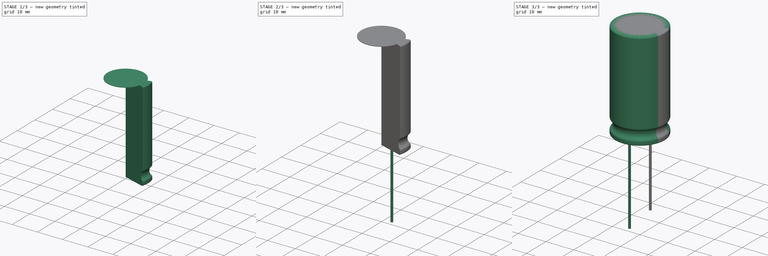
[diagram: build sequence overview — one tinted view per stage of 3, left to right]
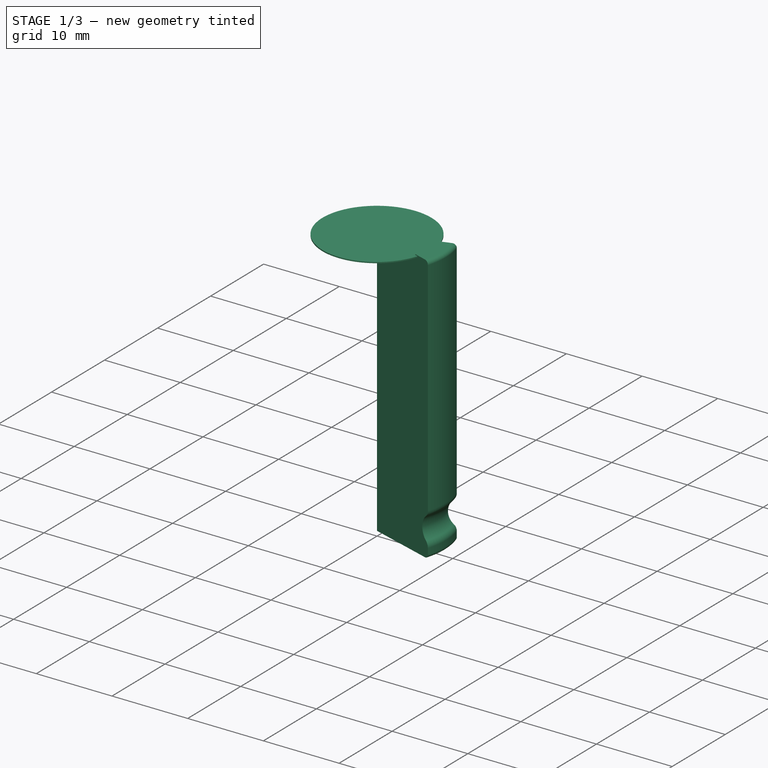
[diagram: stage 1 of 3 — iso view after this stage's code; geometry added in this stage tinted green]
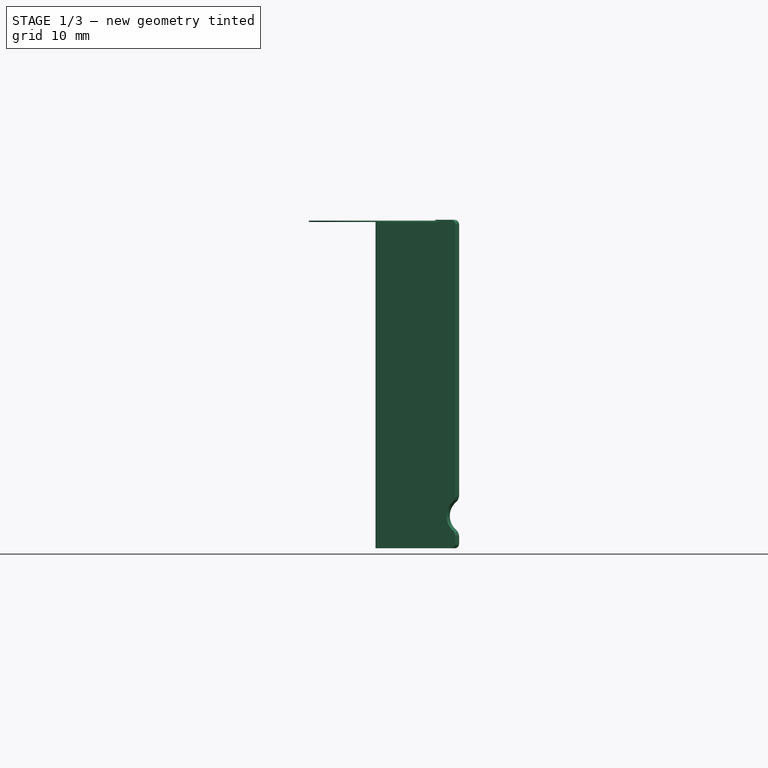
[diagram: stage 1 of 3 — front view after this stage's code; geometry added in this stage tinted green]
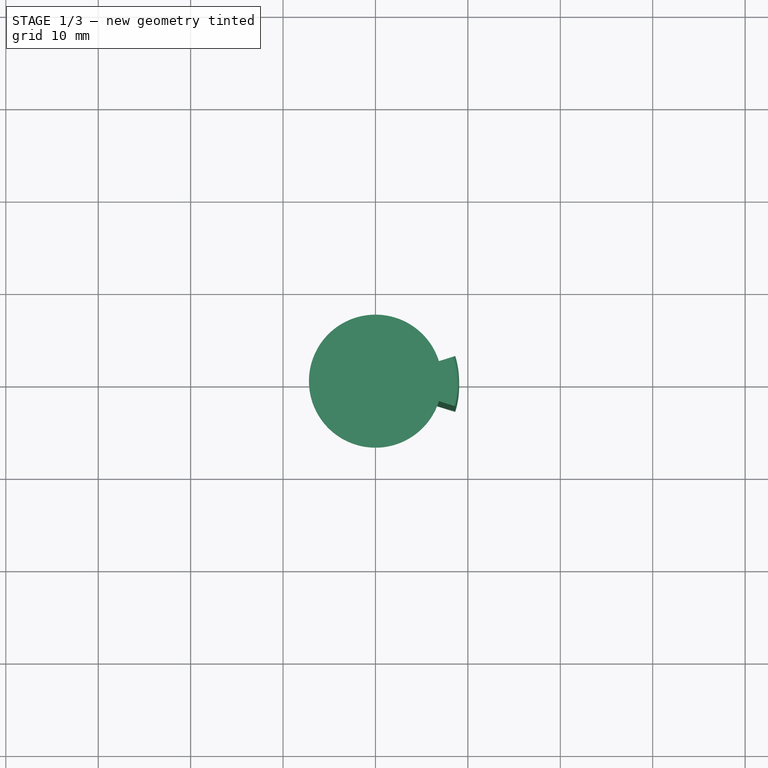
[diagram: stage 1 of 3 — top view after this stage's code; geometry added in this stage tinted green]
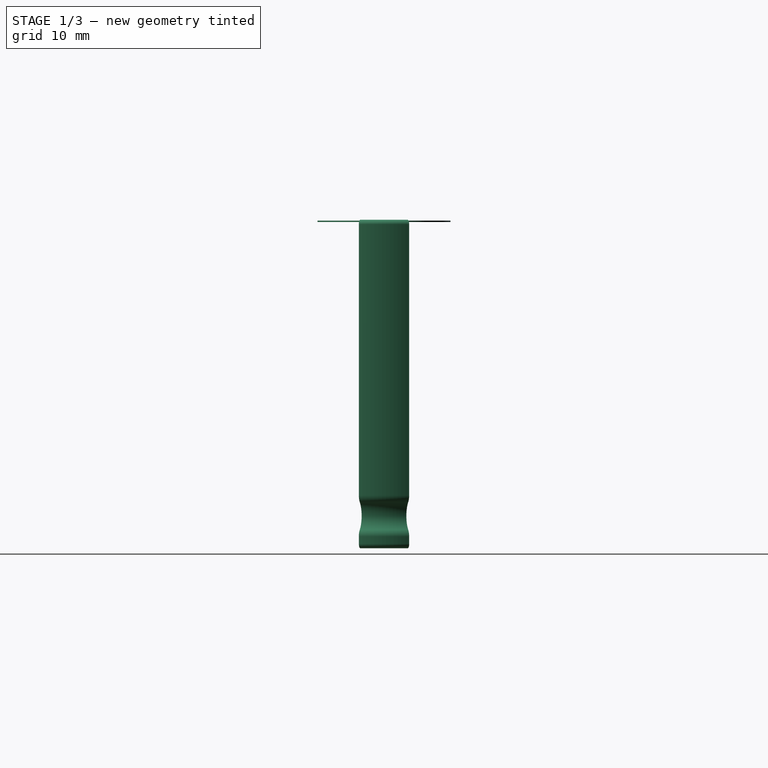
[diagram: stage 1 of 3 — right view after this stage's code; geometry added in this stage tinted green]
FCSTD DOCUMENT  (FreeCAD 0.19R22522 (Git))
Label: ELKO_CONFIGURABLE
License: All rights reserved
LicenseURL: http://en.wikipedia.org/wiki/All_rights_reserved
objects: Sketcher::SketchObject×6, PartDesign::Body×5, PartDesign::Pad×3, PartDesign::Revolution×2, Spreadsheet::Sheet×1, PartDesign::Plane×1
note: 22 computed .brp shape members not serialized (recipe doc carries the construction recipe); baked Part::Feature solids carry a one-line shape summary decoded from their .brp

FEATURE [PartDesign::Body] Body002  label="Pin_Kathode"
  Group = -> [Sketch003,Pad001]
  Origin = -> Origin002
  Tip = -> Pad001
FEATURE [Sketcher::SketchObject] Sketch004
  AttachmentOffset = pos=(0,0,0) rot=(0,1,0;4.71239rad)
  MapMode = 5
  Placement = pos=(0,0,0) rot=(-1,0,0;4.71239rad)
  Support = -> [YZ_Plane003]
  expr: Constraints[26] = <<Config>>.H + 0.05
  expr: Constraints[20] = 1mm
  expr: Constraints[30] = <<Config>>.D / 2 * 0.25
  expr: Constraints[25] = <<Config>>.D / 2 + 0.05
  expr: Constraints[12] = 3.5mm
  expr: Constraints[6] = <<Config>>.R_oben
  expr: Constraints[10] = <<Config>>.R_unten
  sketch-geometry (12):
    g0: LineSegment StartX=0 StartY=0 StartZ=0 EndX=8.55 EndY=0 EndZ=0
    g1: LineSegment StartX=9.05 StartY=0.5 StartZ=0 EndX=9.05 EndY=1.26393 EndZ=0
    g2: LineSegment StartX=8.55 StartY=35.55 StartZ=0 EndX=6.8 EndY=35.55 EndZ=0
    g3: LineSegment StartX=0 StartY=35.35 StartZ=0 EndX=0 EndY=0 EndZ=0
    g4: ArcOfCircle CenterX=8.55 CenterY=35.05 CenterZ=0 NormalX=0 NormalY=0 NormalZ=1 AngleXU=0 Radius=0.5 StartAngle=1.5e-15 EndAngle=1.5708
    g5: ArcOfCircle CenterX=8.55 CenterY=0.5 CenterZ=0 NormalX=0 NormalY=0 NormalZ=1 AngleXU=0 Radius=0.5 StartAngle=4.71239 EndAngle=6.28319
    g6: ArcOfCircle CenterX=10.05 CenterY=3.5 CenterZ=0 NormalX=0 NormalY=0 NormalZ=1 AngleXU=0 Radius=2 StartAngle=2.30052 EndAngle=3.98266
    g7: LineSegment StartX=9.05 StartY=5.73607 StartZ=0 EndX=9.05 EndY=35.05 EndZ=0
    g8: ArcOfCircle CenterX=8.05 CenterY=5.73607 CenterZ=0 NormalX=0 NormalY=0 NormalZ=1 AngleXU=0 Radius=1 StartAngle=5.44212 EndAngle=6.28319
    g9: ArcOfCircle CenterX=8.05 CenterY=1.26393 CenterZ=0 NormalX=0 NormalY=0 NormalZ=1 AngleXU=0 Radius=1 StartAngle=0 EndAngle=0.841069
    g10: LineSegment StartX=6.8 StartY=35.55 StartZ=0 EndX=6.8 EndY=35.35 EndZ=0
    g11: LineSegment StartX=6.8 StartY=35.35 StartZ=0 EndX=0 EndY=35.35 EndZ=0
  constraints (31):
    c: Coincident(g0,g-1)
    c: Vertical(g1)
    c: Horizontal(g2)
    c: Coincident(g3,g0)
    c: Coincident(g7,g4) = -1.5708
    c: Tangent(g2,g4) = -1.5708
    c: Radius(g4) = 0.5
    c: Tangent(g0,g5) = -1.5708
    c: Tangent(g1,g5) = -1.5708
    c: Horizontal(g0)
    c: Radius(g5) = 0.5
    c: Tangent(g1,g7)
    c: DistanceY(g0,g6) = 3.5
    c: Radius(g6) = 2
    c: Tangent(g4,g7,g4) = -1.5708
    c: Tangent(g6,g8) = 1.5708
    c: Tangent(g7,g8) = -1.5708
    c: Tangent(g6,g9) = 1.5708
    c: Tangent(g1,g9) = -1.5708
    c: Radius(g8) = 1
    c: Radius(g9) = 1
    c: DistanceX(g1,g6) = 1
    c: Vertical(g10)
    c: Coincident(g11,g10)
    c: Horizontal(g11)
    c: DistanceX(g0,g4) = 9.05
    c: DistanceY(g0,g2) = 35.55
    c: Coincident(g2,g10)
    c: Coincident(g3,g11)
    c: DistanceY(g10,g2) = 0.2
    c: DistanceX(g2,g4) = 2.25
FEATURE [PartDesign::Revolution] Revolution001
  Angle = 35
  Axis = (-2e-16,0,1)
  Base = (0,0,0)
  Midplane = true
  Placement = pos=(0,0,0) rot=(0.57735,0.57735,0.57735;2.0944rad)
  Profile = -> Sketch004
  ReferenceAxis = -> Sketch004 [V_Axis]
  Reversed = true
FEATURE [PartDesign::Body] Body003
  Group = -> [Sketch004,Revolution001]
  Origin = -> Origin003
  Tip = -> Revolution001
FEATURE [PartDesign::Plane] DatumPlane
  AttachmentOffset = pos=(0,0,35.3) rot=(0,0,1;0rad)
  Length = 60
  MapMode = 5
  Placement = pos=(0,0,35.3) rot=(0,0,1;0rad)
  ResizeMode = 0
  Support = -> [XY_Plane004]
  Width = 60
  expr: .AttachmentOffset.Base.z = <<Config>>.H - 0.2
FEATURE [Sketcher::SketchObject] Sketch005
  MapMode = 5
  Placement = pos=(0,0,35.3) rot=(0,0,1;0rad)
  Support = -> [DatumPlane]
  expr: Constraints[1] = <<Config>>.D / 2 * 0.8
  sketch-geometry (1):
    g0: Circle CenterX=0 CenterY=0 CenterZ=0 NormalX=0 NormalY=0 NormalZ=1 AngleXU=0 Radius=7.2
  constraints (2):
    c: Coincident(g0,g-1)
    c: Radius(g0) = 7.2
FEATURE [PartDesign::Pad] Pad002
  Direction = (1,1,1)
  Length = 0.15
  Length2 = 100
  Placement = pos=(0,0,35.3) rot=(0,0,1;0rad)
  Profile = -> Sketch005
  Type = 0
FEATURE [PartDesign::Body] Body004
  Group = -> [DatumPlane,Sketch005,Pad002]
  Origin = -> Origin004
  Tip = -> Pad002
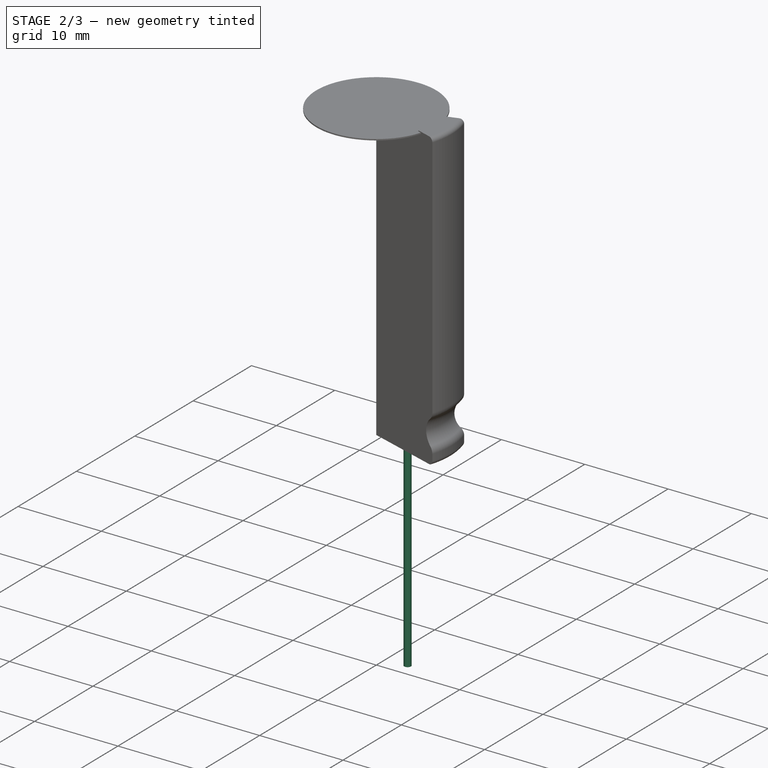
[diagram: stage 2 of 3 — iso view after this stage's code; geometry added in this stage tinted green]
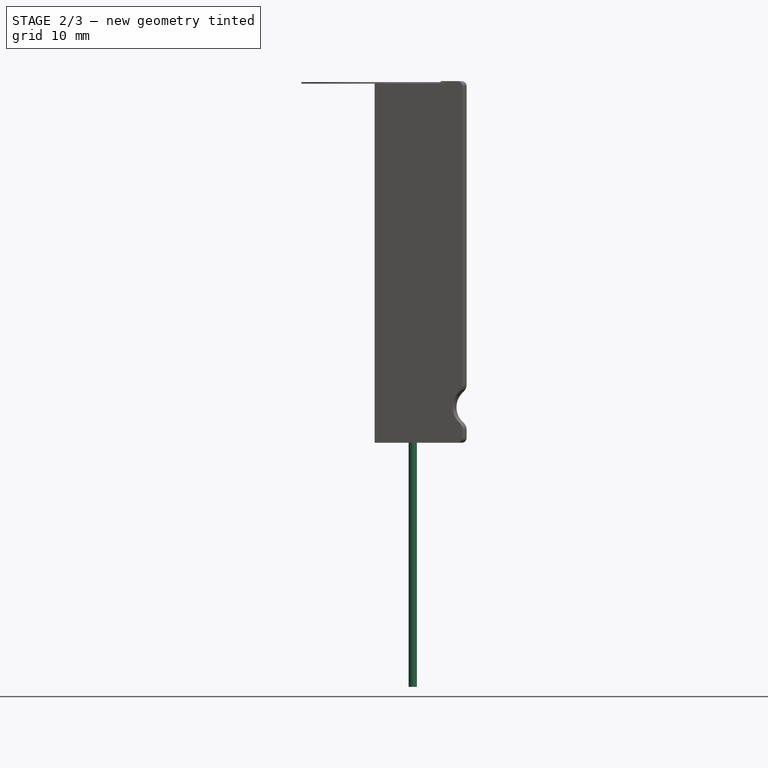
[diagram: stage 2 of 3 — front view after this stage's code; geometry added in this stage tinted green]
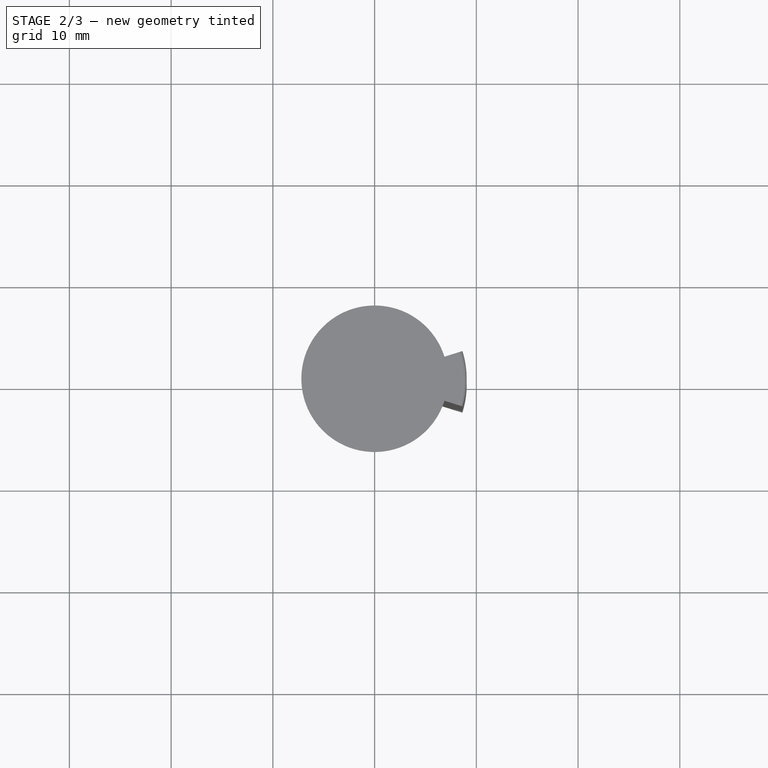
[diagram: stage 2 of 3 — top view after this stage's code; geometry added in this stage tinted green]
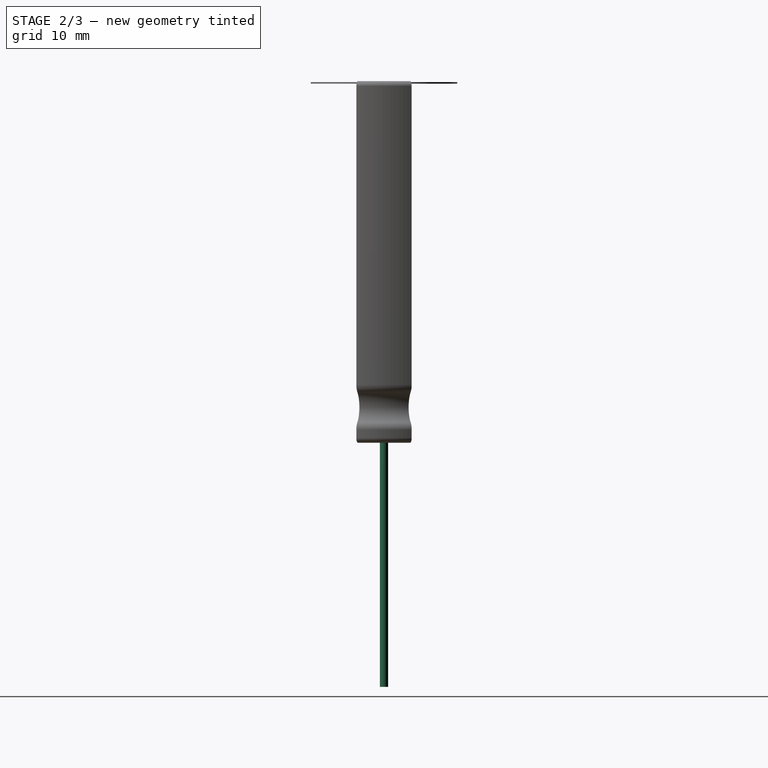
[diagram: stage 2 of 3 — right view after this stage's code; geometry added in this stage tinted green]
FEATURE [PartDesign::Body] Body001  label="Pin_Anode"
  Group = -> [Sketch002,Pad]
  Origin = -> Origin001
  Tip = -> Pad
FEATURE [Sketcher::SketchObject] Sketch003
  MapMode = 5
  Support = -> [XY_Plane002]
  expr: Constraints[2] = <<Config>>.Pin_abstand / 2
  expr: Constraints[1] = <<Config>>.Pin_d
  sketch-geometry (1):
    g0: Circle CenterX=3.75 CenterY=0 CenterZ=0 NormalX=0 NormalY=0 NormalZ=1 AngleXU=0 Radius=0.4
  constraints (3):
    c: PointOnObject(g0,g-1)
    c: Diameter(g0) = 0.8
    c: DistanceX(g-1,g0) = 3.75
FEATURE [PartDesign::Pad] Pad001
  Direction = (1,1,1)
  Length = 24
  Length2 = 100
  Profile = -> Sketch003
  Reversed = true
  Type = 0
  expr: Length = <<Config>>.Kathode_laenge
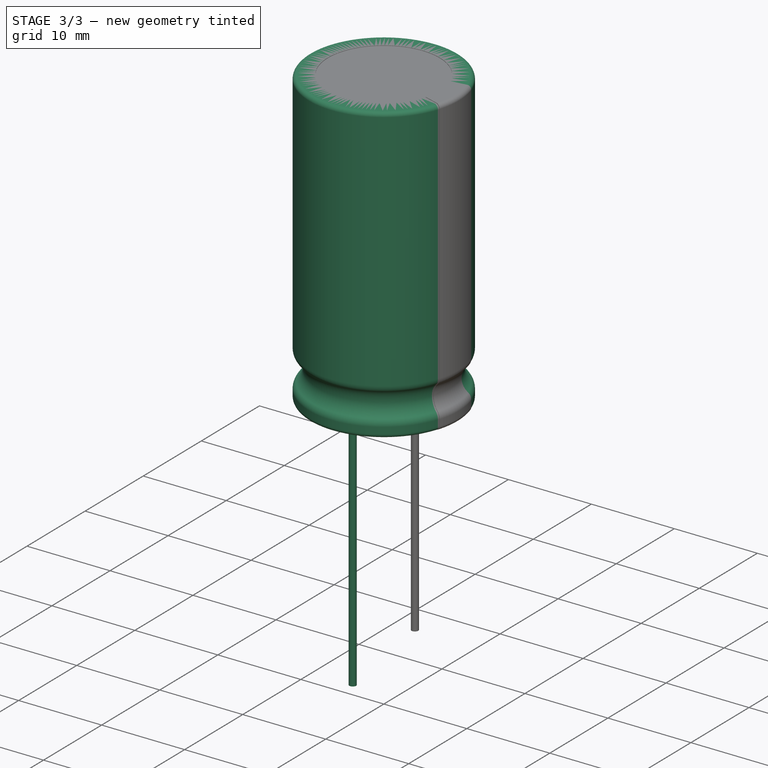
[diagram: stage 3 of 3 — iso view after this stage's code; geometry added in this stage tinted green]
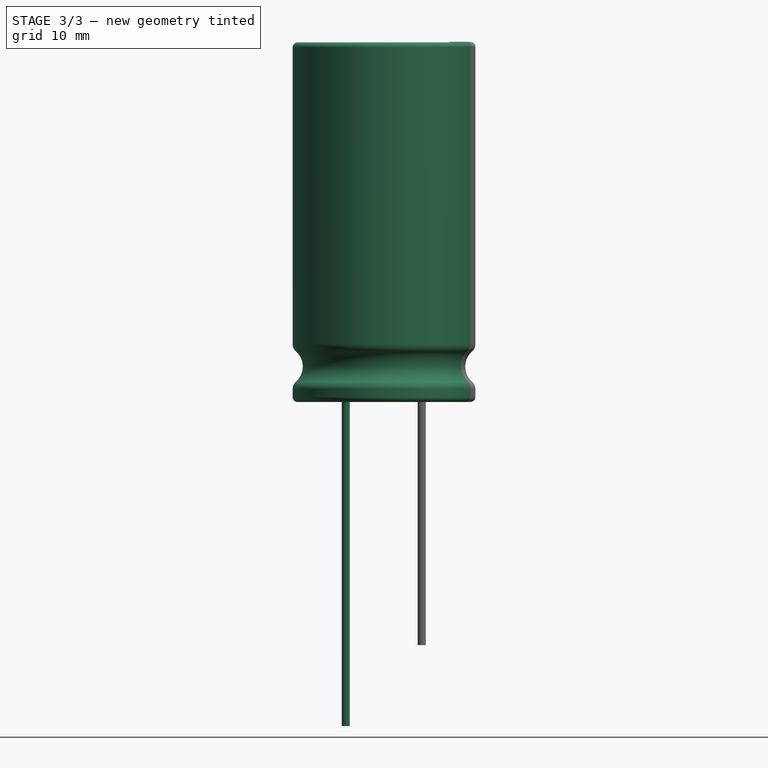
[diagram: stage 3 of 3 — front view after this stage's code; geometry added in this stage tinted green]
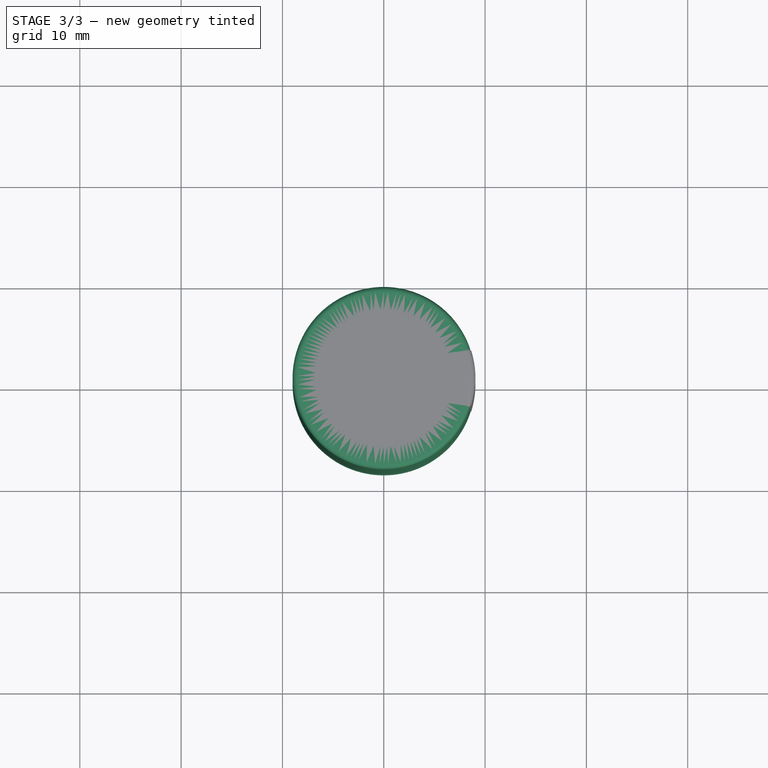
[diagram: stage 3 of 3 — top view after this stage's code; geometry added in this stage tinted green]
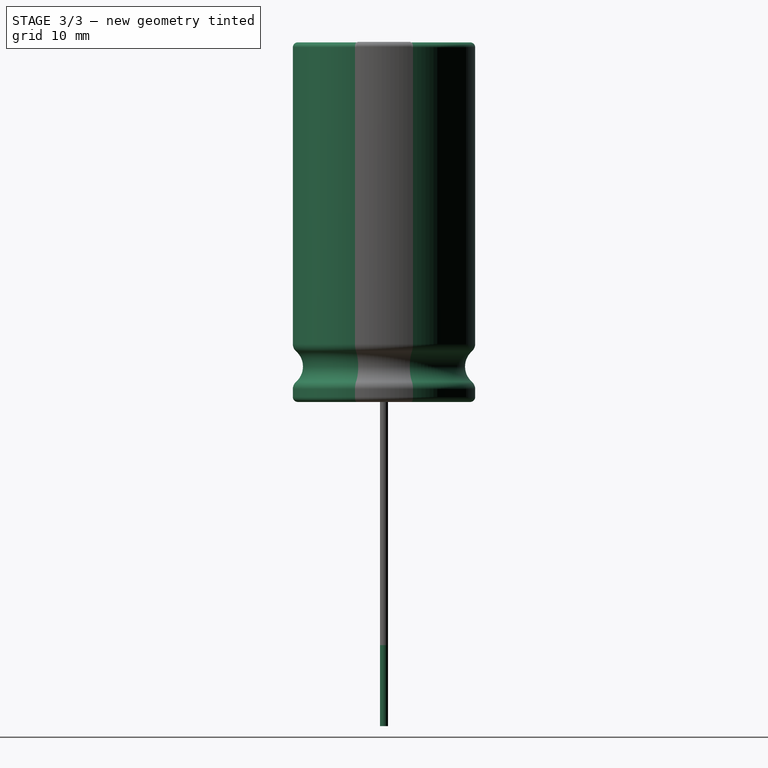
[diagram: stage 3 of 3 — right view after this stage's code; geometry added in this stage tinted green]
FEATURE [Spreadsheet::Sheet] Spreadsheet  label="Config"
  cells = A1=D (mm); B1=H (mm); C1=R_oben; D1=R_unten; A2(D)=18; B2(H)=35.5; C2(R_oben)=0.5; D2(R_unten)=0.5; A4=Sollbruch_breite; B4=Sollbruch_tiefe; A5(Sollbruch_breite)=0.2; B5(Sollbruch_tiefe)=0.2; A7=Pin_abstand; B7=Pin_d; C7=Anode_laenge; D7=Kathode_laenge; A8(Pin_abstand)=7.5; B8(Pin_d)=0.8; C8(Anode_laenge)=32; D8(Kathode_laenge)=24
FEATURE [Sketcher::SketchObject] Sketch
  MapMode = 5
  Placement = pos=(0,0,0) rot=(0.57735,0.57735,0.57735;2.0944rad)
  Support = -> [YZ_Plane]
  expr: Constraints[30] = <<Config>>.D / 2 * 0.25
  expr: Constraints[28] = <<Config>>.D / 2
  expr: Constraints[25] = <<Config>>.H
  expr: Constraints[6] = <<Config>>.R_oben
  expr: Constraints[10] = <<Config>>.R_unten
  sketch-geometry (12):
    g0: LineSegment StartX=0 StartY=0 StartZ=0 EndX=8.5 EndY=0 EndZ=0
    g1: LineSegment StartX=9 StartY=0.5 StartZ=0 EndX=9 EndY=1.26393 EndZ=0
    g2: LineSegment StartX=8.5 StartY=35.5 StartZ=0 EndX=6.75 EndY=35.5 EndZ=0
    g3: LineSegment StartX=0 StartY=35.3 StartZ=0 EndX=0 EndY=0 EndZ=0
    g4: ArcOfCircle CenterX=8.5 CenterY=35 CenterZ=0 NormalX=0 NormalY=0 NormalZ=1 AngleXU=0 Radius=0.5 StartAngle=4e-16 EndAngle=1.5708
    g5: ArcOfCircle CenterX=8.5 CenterY=0.5 CenterZ=0 NormalX=0 NormalY=0 NormalZ=1 AngleXU=0 Radius=0.5 StartAngle=4.71239 EndAngle=6.28319
    g6: ArcOfCircle CenterX=10 CenterY=3.5 CenterZ=0 NormalX=0 NormalY=0 NormalZ=1 AngleXU=0 Radius=2 StartAngle=2.30052 EndAngle=3.98266
    g7: LineSegment StartX=9 StartY=5.73607 StartZ=0 EndX=9 EndY=35 EndZ=0
    g8: ArcOfCircle CenterX=8 CenterY=5.73607 CenterZ=0 NormalX=0 NormalY=0 NormalZ=1 AngleXU=0 Radius=1 StartAngle=5.44212 EndAngle=6.28319
    g9: ArcOfCircle CenterX=8 CenterY=1.26393 CenterZ=0 NormalX=0 NormalY=0 NormalZ=1 AngleXU=0 Radius=1 StartAngle=0 EndAngle=0.841069
    g10: LineSegment StartX=6.75 StartY=35.5 StartZ=0 EndX=6.75 EndY=35.3 EndZ=0
    g11: LineSegment StartX=6.75 StartY=35.3 StartZ=0 EndX=0 EndY=35.3 EndZ=0
  constraints (32):
    c: Coincident(g0,g-1)
    c: Vertical(g1)
    c: Horizontal(g2)
    c: Coincident(g3,g0)
    c: Coincident(g7,g4) = -1.5708
    c: Tangent(g2,g4) = -1.5708
    c: Radius(g4) = 0.5
    c: Tangent(g0,g5) = -1.5708
    c: Tangent(g1,g5) = -1.5708
    c: Horizontal(g0)
    c: Radius(g5) = 0.5
    c: Tangent(g1,g7)
    c: DistanceY(g0,g6) = 3.5
    c: Radius(g6) = 2
    c: Tangent(g4,g7,g4) = -1.5708
    c: Tangent(g6,g8) = 1.5708
    c: Tangent(g7,g8) = -1.5708
    c: Tangent(g6,g9) = 1.5708
    c: Tangent(g1,g9) = -1.5708
    c: Radius(g8) = 1
    c: Radius(g9) = 1
    c: DistanceX(g1,g6) = 1
    c: Vertical(g10)
    c: Coincident(g11,g10)
    c: Horizontal(g11)
    c: DistanceY(g0,g2) = 35.5
    c: Coincident(g2,g10)
    c: Coincident(g3,g11)
    c: DistanceX(g3,g4) = 9
    c: DistanceY(g10,g10) = 0.2
    c: DistanceX(g2,g4) = 2.25
    c: Vertical(g3)
FEATURE [PartDesign::Revolution] Revolution
  Angle = 360
  Axis = (-2e-16,3e-16,1)
  Base = (0,0,0)
  Placement = pos=(0,0,0) rot=(0.57735,0.57735,0.57735;2.0944rad)
  Profile = -> Sketch
  ReferenceAxis = -> Sketch [V_Axis]
  Reversed = true
FEATURE [PartDesign::Body] Body
  Group = -> [Sketch,Revolution]
  Origin = -> Origin
  Tip = -> Revolution
FEATURE [Sketcher::SketchObject] Sketch001
  AttachmentOffset = pos=(0,0,35.5) rot=(0,0,1;0rad)
  MapMode = 5
  Placement = pos=(0,0,35.5) rot=(0,0,1;0rad)
  Support = -> [XY_Plane]
  expr: Constraints[12] = <<Config>>.Sollbruch_breite
  expr: .AttachmentOffset.Base.z = <<Config>>.H
  expr: Constraints[13] = <<Config>>.Sollbruch_breite
  expr: Constraints[24] = <<Config>>.D - 2 * <<Config>>.R_oben - 1
  expr: Constraints[27] = <<Config>>.D - 2 * <<Config>>.R_oben - 1
  sketch-geometry (12):
    g0: LineSegment StartX=-8 StartY=0.1 StartZ=0 EndX=-0.1 EndY=0.1 EndZ=0
    g1: LineSegment StartX=8 StartY=-0.1 StartZ=0 EndX=0.1 EndY=-0.1 EndZ=0
    g2: LineSegment StartX=-0.1 StartY=8 StartZ=0 EndX=-0.1 EndY=0.1 EndZ=0
    g3: LineSegment StartX=0.1 StartY=-8 StartZ=0 EndX=0.1 EndY=-0.1 EndZ=0
    g4: LineSegment StartX=-0.1 StartY=8 StartZ=0 EndX=0.1 EndY=8 EndZ=0
    g5: LineSegment StartX=8 StartY=0.1 StartZ=0 EndX=8 EndY=-0.1 EndZ=0
    g6: LineSegment StartX=-0.1 StartY=-8 StartZ=0 EndX=0.1 EndY=-8 EndZ=0
    g7: LineSegment StartX=-8 StartY=0.1 StartZ=0 EndX=-8 EndY=-0.1 EndZ=0
    g8: LineSegment StartX=0.1 StartY=0.1 StartZ=0 EndX=8 EndY=0.1 EndZ=0
    g9: LineSegment StartX=0.1 StartY=0.1 StartZ=0 EndX=0.1 EndY=8 EndZ=0
    g10: LineSegment StartX=-0.1 StartY=-0.1 StartZ=0 EndX=-8 EndY=-0.1 EndZ=0
    g11: LineSegment StartX=-0.1 StartY=-0.1 StartZ=0 EndX=-0.1 EndY=-8 EndZ=0
  constraints (28):
    c: Horizontal(g1)
    c: Vertical(g2)
    c: Coincident(g4,g2)
    c: Coincident(g4,g9)
    c: Coincident(g5,g8)
    c: Coincident(g5,g1)
    c: Coincident(g6,g11)
    c: Coincident(g6,g3)
    c: Horizontal(g6)
    c: Coincident(g7,g0)
    c: Coincident(g7,g10)
    c: Vertical(g7)
    c: DistanceX(g4,g4) = 0.2
    c: DistanceY(g5,g5) = 0.2
    c: Symmetric(g8,g1,g-1)
    c: Symmetric(g2,g9,g-2)
    c: Tangent(g0,g8)
    c: Coincident(g9,g8)
    c: Tangent(g3,g9)
    c: Coincident(g1,g3)
    c: Tangent(g1,g10)
    c: Coincident(g2,g0)
    c: Coincident(g11,g10)
    c: Tangent(g2,g11)
    c: DistanceX(g7,g1) = 16
    c: Symmetric(g0,g5,g-2)
    c: Symmetric(g4,g3,g-1)
    c: DistanceY(g3,g4) = 16
FEATURE [Sketcher::SketchObject] Sketch002
  MapMode = 5
  Support = -> [XY_Plane001]
  expr: Constraints[2] = <<Config>>.Pin_abstand / 2
  expr: Constraints[0] = <<Config>>.Pin_d
  sketch-geometry (1):
    g0: Circle CenterX=-3.75 CenterY=0 CenterZ=0 NormalX=0 NormalY=0 NormalZ=1 AngleXU=0 Radius=0.4
  constraints (3):
    c: Diameter(g0) = 0.8
    c: PointOnObject(g0,g-1)
    c: DistanceX(g0,g-1) = 3.75
FEATURE [PartDesign::Pad] Pad
  Direction = (1,1,1)
  Length = 32
  Length2 = 100
  Profile = -> Sketch002
  Reversed = true
  Type = 0
  expr: Length = <<Config>>.Anode_laenge
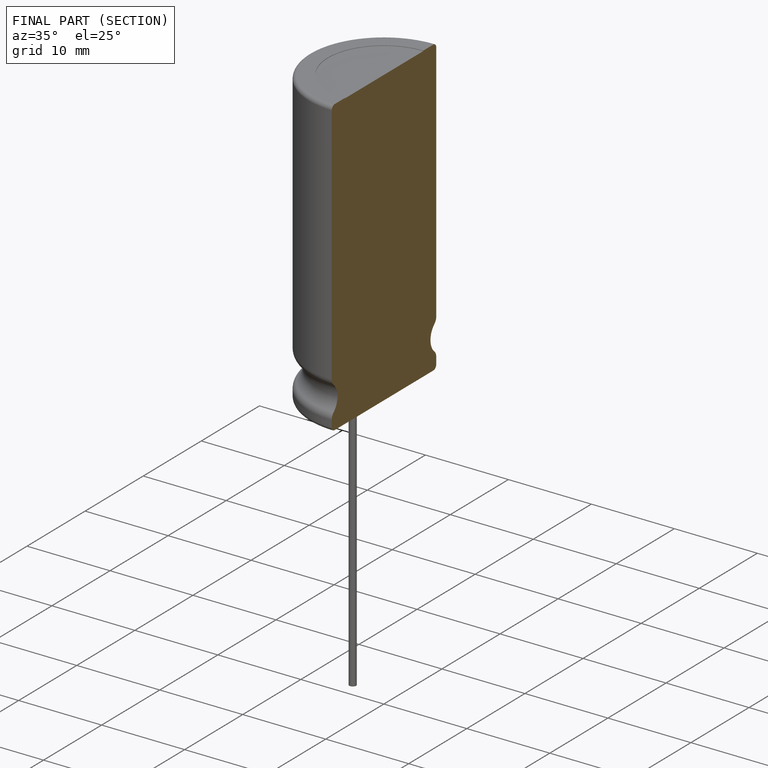
[diagram: finished part — half-section view (interior)]
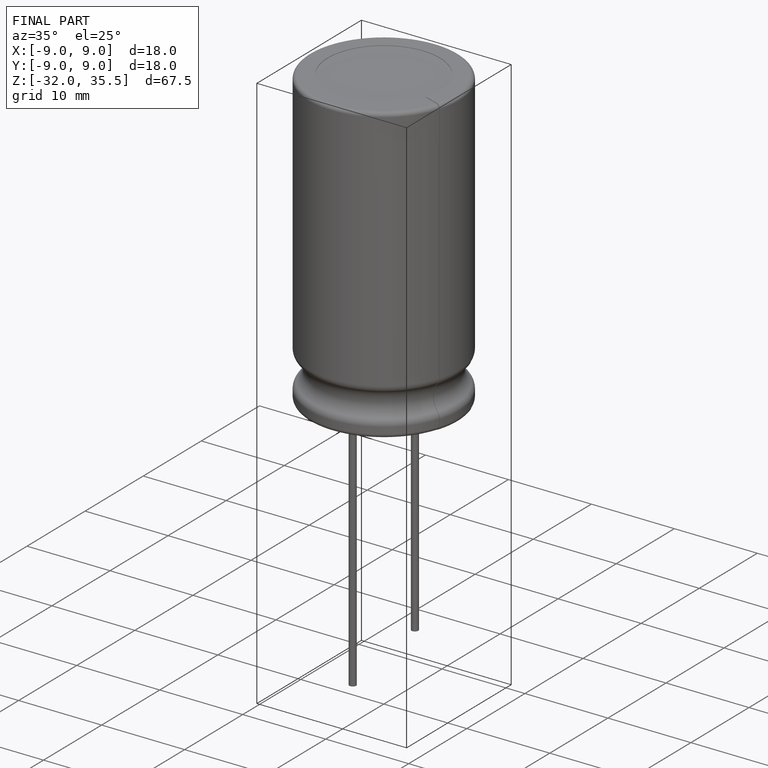
[diagram: finished part — iso view with bounding-box wireframe]
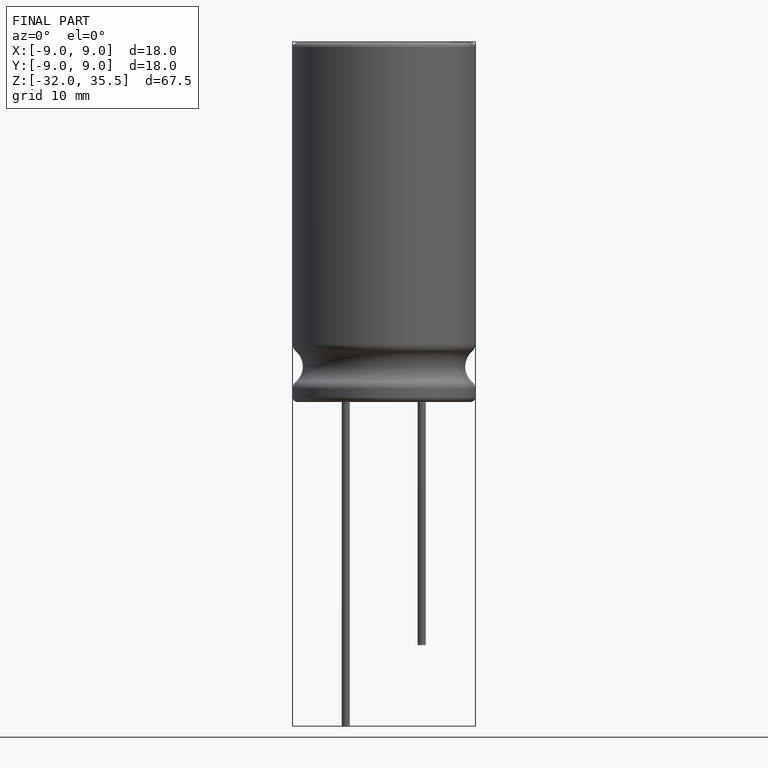
[diagram: finished part — front view with bounding-box wireframe]
